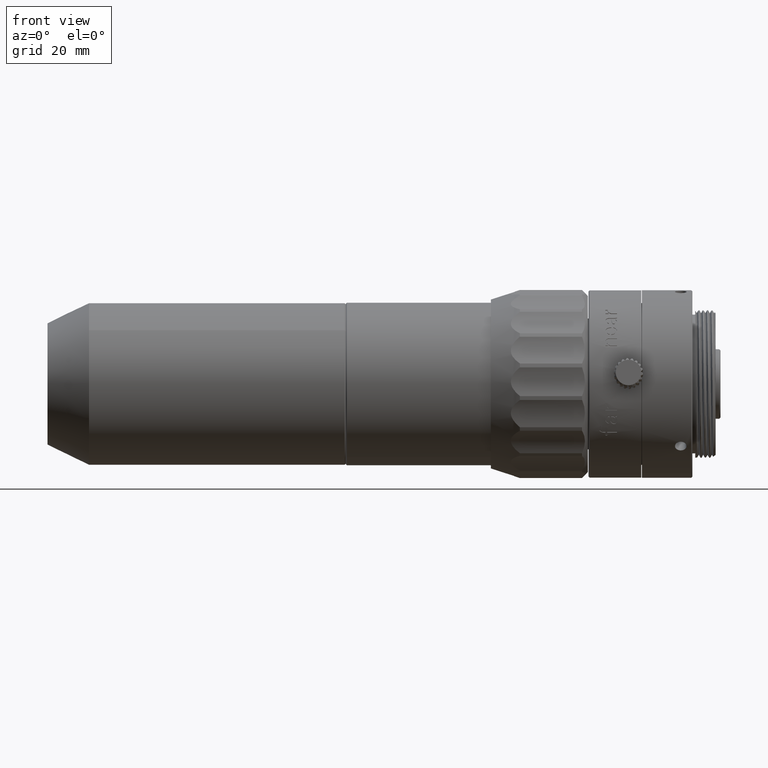
[diagram: clean part render]
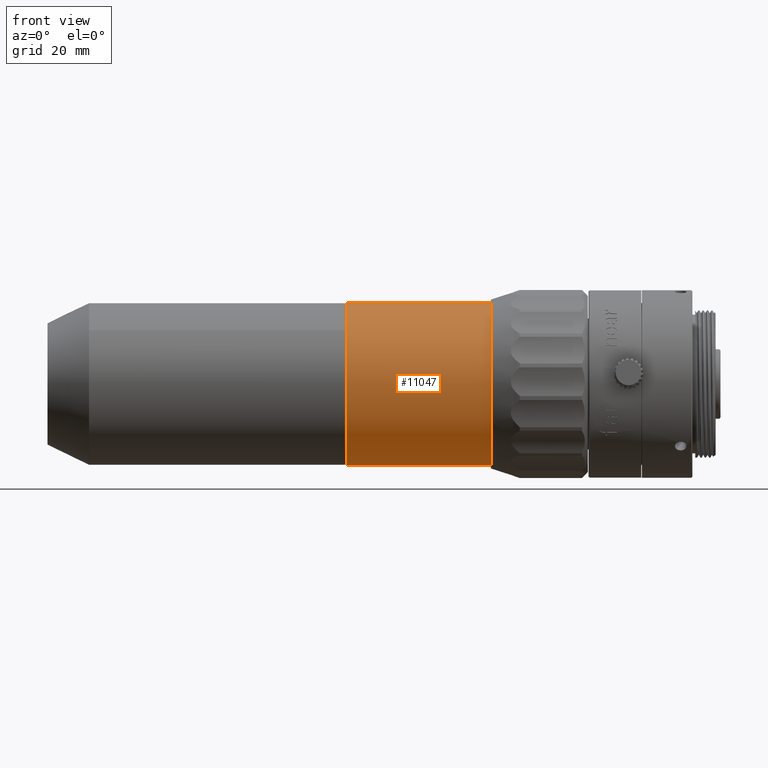
[diagram: same view with one face highlighted and labeled with its STEP entity id]
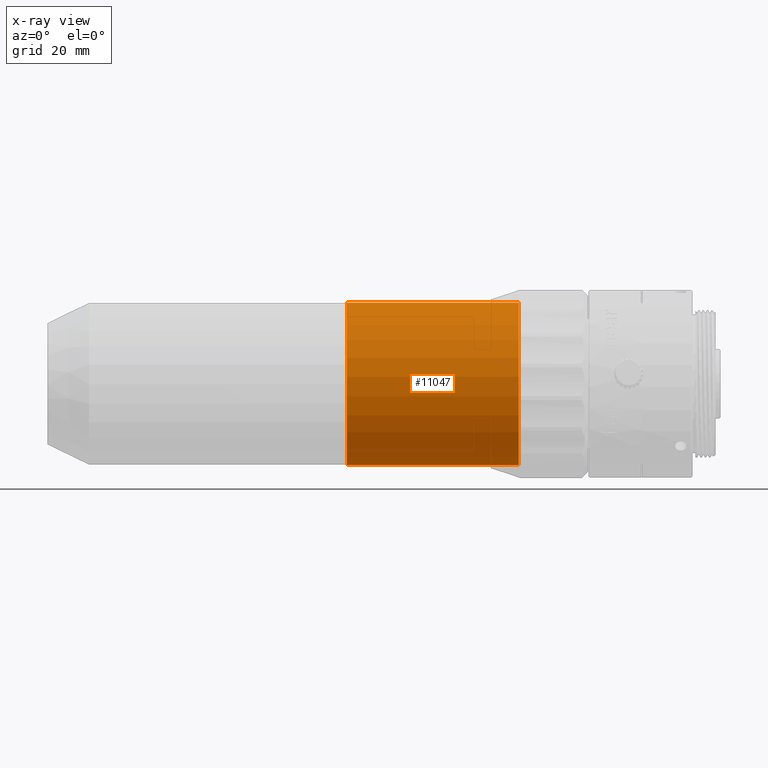
[diagram: x-ray of the same camera — body ghosted, the highlighted face saturated]
A machine part, front view. The second image highlights one B-rep face of the part: STEP entity #11047.
The next image is the same camera in x-ray: the body ghosted, the highlighted face saturated — about 0% of this face is hidden behind the body in this view.
In plain terms, the highlighted cylindrical surface (bore or boss wall) has radius 14 mm, axis along (-1, 0, 0).
Its self-contained STEP definition (entity closure, byte-faithful):
#1683 = DIRECTION ( 'NONE',  ( 0.000000000000000000, -0.4351517658935935007, -0.9003571183923005927 ) ) ;
#2081 = EDGE_CURVE ( 'NONE', #7303, #7303, #21290, .T. ) ;
#2699 = EDGE_CURVE ( 'NONE', #18392, #18392, #17346, .T. ) ;
#4496 = EDGE_LOOP ( 'NONE', ( #18292 ) ) ;
#5172 = DIRECTION ( 'NONE',  ( -1.000000000000000000, 0.000000000000000000, 0.000000000000000000 ) ) ;
#5423 = CARTESIAN_POINT ( 'NONE',  ( -4.035740922414321474, -1.265596703952541313, 73.43615199999764798 ) ) ;
#5506 = FACE_OUTER_BOUND ( 'NONE', #20850, .T. ) ;
#6086 = ORIENTED_EDGE ( 'NONE', *, *, #2699, .T. ) ;
#7303 = VERTEX_POINT ( 'NONE', #22637 ) ;
#9384 = DIRECTION ( 'NONE',  ( -1.000000000000000000, 0.000000000000000000, 0.000000000000000000 ) ) ;
#10789 = CARTESIAN_POINT ( 'NONE',  ( 25.56425907758597305, -1.265596703952541313, 73.43615199999764798 ) ) ;
#11047 = ADVANCED_FACE ( 'NONE', ( #14989, #5506 ), #22593, .T. ) ;
#11235 = CARTESIAN_POINT ( 'NONE',  ( -0.8651379224129396306, -1.265596703952541313, 73.43615199999764798 ) ) ;
#12859 = AXIS2_PLACEMENT_3D ( 'NONE', #11235, #9384, #21328 ) ;
#12931 = AXIS2_PLACEMENT_3D ( 'NONE', #5423, #15144, #1683 ) ;
#14780 = DIRECTION ( 'NONE',  ( 0.000000000000000000, -0.4351517658935935007, -0.9003571183923005927 ) ) ;
#14910 = CARTESIAN_POINT ( 'NONE',  ( 25.56425907758597305, -7.357721426463049497, 60.83115234250502112 ) ) ;
#14989 = FACE_OUTER_BOUND ( 'NONE', #4496, .T. ) ;
#15144 = DIRECTION ( 'NONE',  ( 1.000000000000000000, -0.000000000000000000, -0.000000000000000000 ) ) ;
#17346 = CIRCLE ( 'NONE', #18123, 14.00000000000045830 ) ;
#18123 = AXIS2_PLACEMENT_3D ( 'NONE', #10789, #5172, #14780 ) ;
#18292 = ORIENTED_EDGE ( 'NONE', *, *, #2081, .T. ) ;
#18392 = VERTEX_POINT ( 'NONE', #14910 ) ;
#20850 = EDGE_LOOP ( 'NONE', ( #6086 ) ) ;
#21290 = CIRCLE ( 'NONE', #12931, 14.00000000000045830 ) ;
#21328 = DIRECTION ( 'NONE',  ( 0.000000000000000000, -0.4351517658935935007, -0.9003571183923005927 ) ) ;
#22593 = CYLINDRICAL_SURFACE ( 'NONE', #12859, 14.00000000000045830 ) ;
#22637 = CARTESIAN_POINT ( 'NONE',  ( -4.035740922414321474, -7.357721426463049497, 60.83115234250502112 ) ) ;